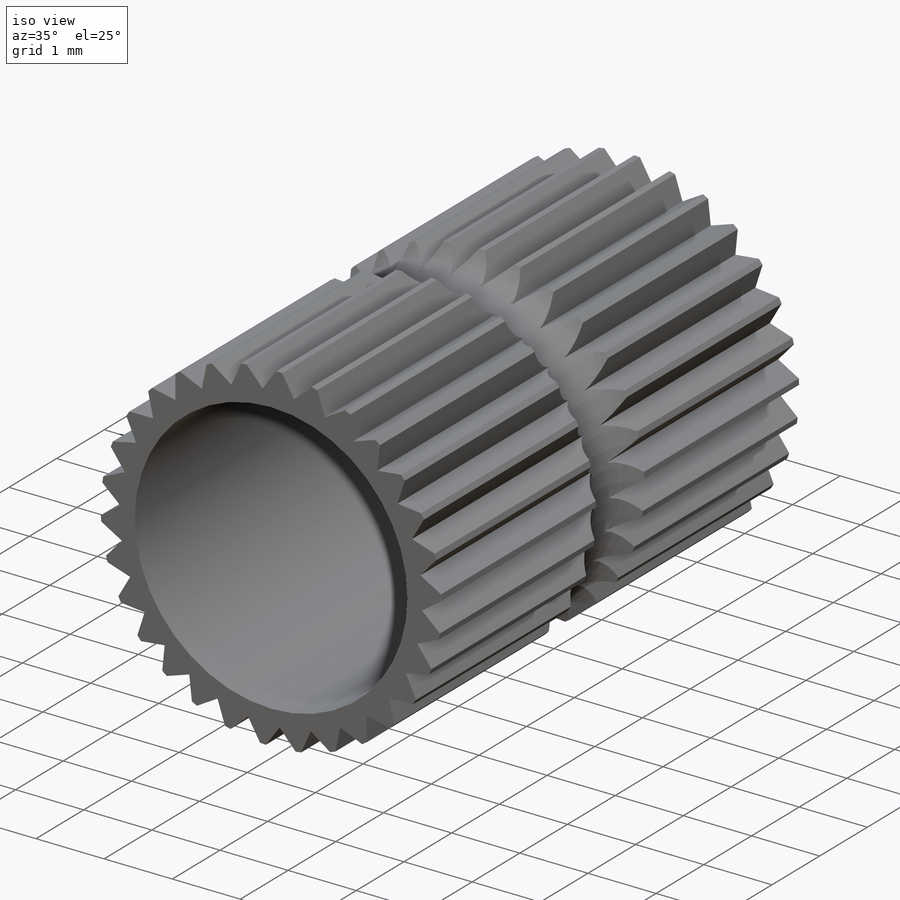
[diagram: iso view]
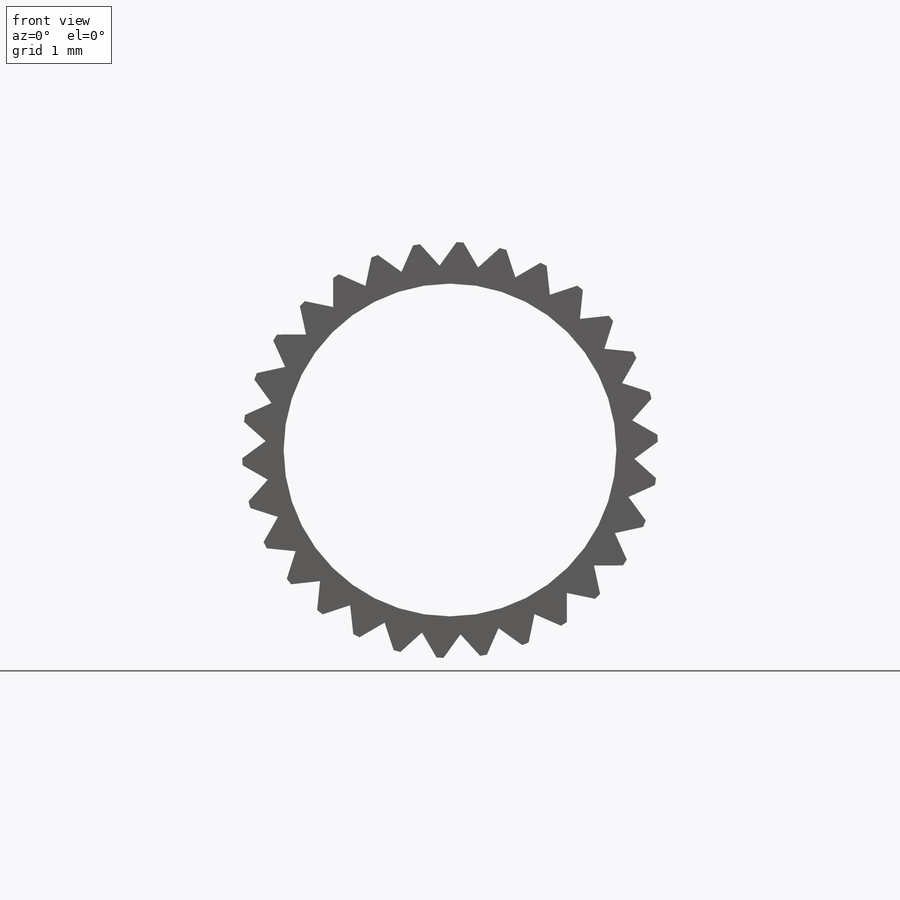
[diagram: front view]
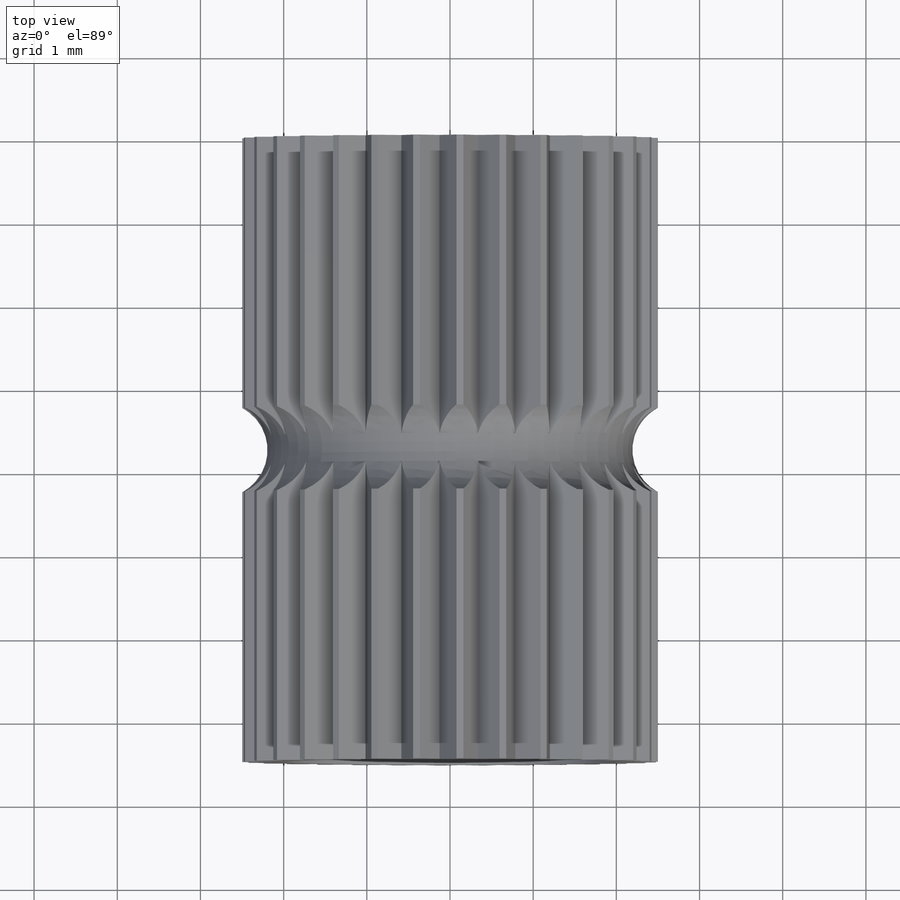
[diagram: top view]
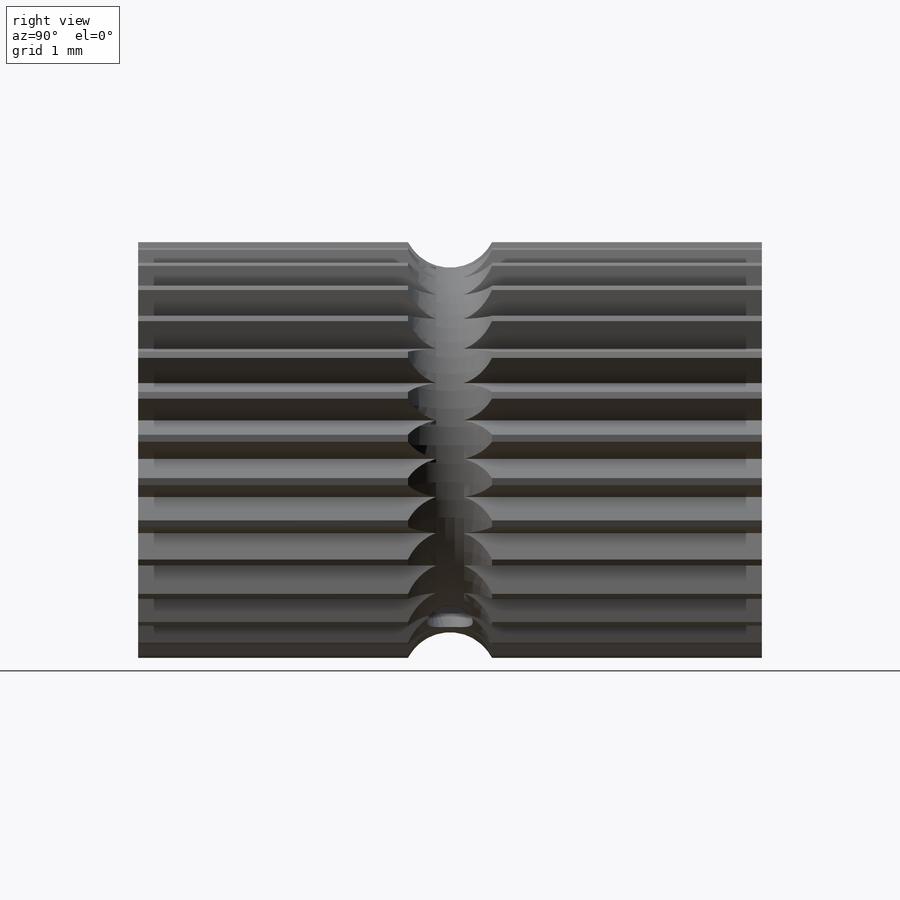
[diagram: right view]
SOLIDWORKS PART (.sldprt)
format: sldprt  version: not decoded by parser v0  size: 487,424 bytes
history: native  units: mm
features: sketch x6, sweep x2, material x1, extrude x1, plane x1, cut_extrude x1 (+13 scaffold rows collapsed)
feature tree (25):
  scaffold x13  (default folders/planes/origin — collapsed)
  material  "Material <not specified>"
  sketch  "Sketch1"  dims[D1=5.0mm D2=4.0mm]
  extrude  "Boss-Extrude1"  Depth=7.5mm
  plane  "Plane1"  Offset=3.75mm
  sketch  "Sketch2"
  sketch  "Sketch4"  dims[D1=2.0mm]
  sweep  "Cut-Sweep1"
  sketch  "Sketch6"
  sketch  "Sketch7"
  sweep  "Cut-Sweep2"
  sketch  "Sketch8"  dims[D1=30.0]
  cut_extrude  "Cut-Extrude2"  Depth=10mm
decode coverage: 5 of 10 modeling features carry decoded parameters
note: suppression state not decoded; provenance and decode notes live in map.json
